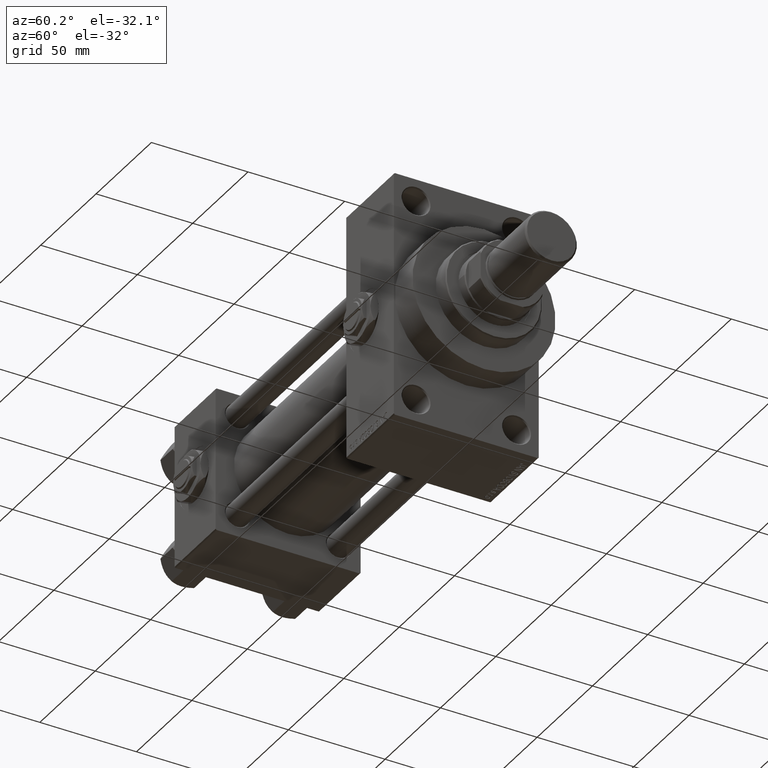
[diagram: clean part render]
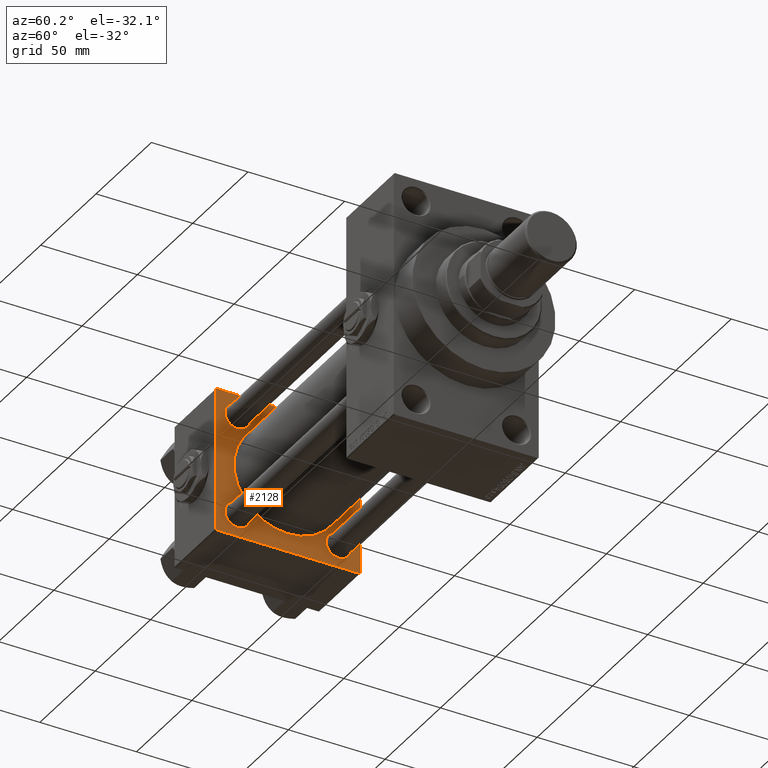
[diagram: same view with one face highlighted and labeled with its STEP entity id]
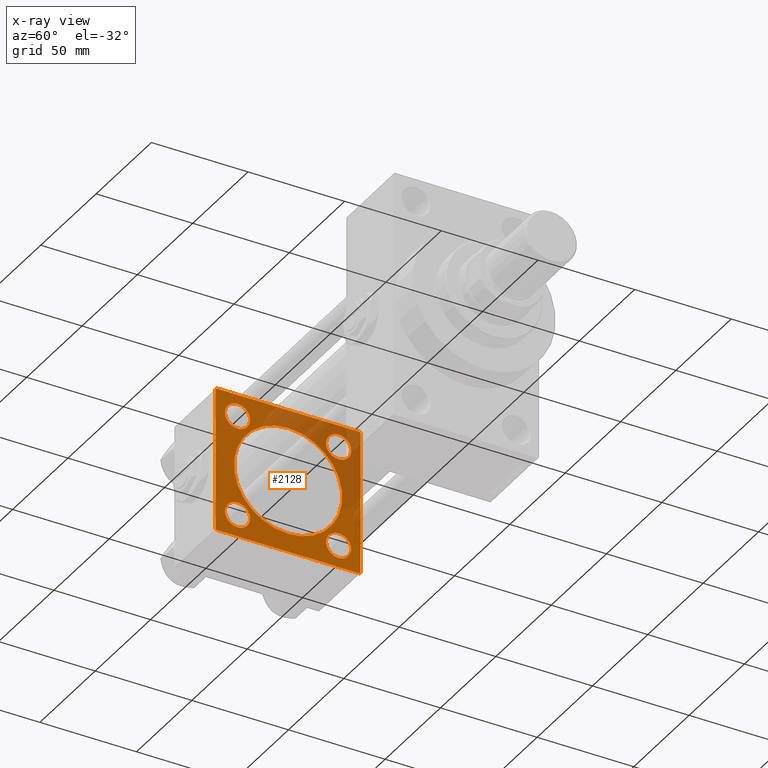
[diagram: x-ray of the same camera — body ghosted, the highlighted face saturated]
A machine part, auxiliary view. The second image highlights one B-rep face of the part: STEP entity #2128.
The next image is the same camera in x-ray: the body ghosted, the highlighted face saturated — about 31% of this face is hidden behind the body in this view.
In plain terms, the highlighted planar face has unit normal (-1, 0, 0).
Its self-contained STEP definition (entity closure, byte-faithful):
#186 = CIRCLE ( 'NONE', #32326, 6.500000000000008882 ) ;
#909 = ORIENTED_EDGE ( 'NONE', *, *, #9702, .T. ) ;
#956 = EDGE_CURVE ( 'NONE', #42505, #9009, #19380, .T. ) ;
#1224 = DIRECTION ( 'NONE',  ( 0.000000000000000000, 9.251858538542971581E-17, -1.000000000000000000 ) ) ;
#2128 = ADVANCED_FACE ( 'NONE', ( #20758, #28786, #17464, #40342, #5884, #21250 ), #36564, .F. ) ;
#2248 = DIRECTION ( 'NONE',  ( 0.000000000000000000, 0.000000000000000000, 1.000000000000000000 ) ) ;
#2397 = DIRECTION ( 'NONE',  ( -1.000000000000000000, 0.000000000000000000, -0.000000000000000000 ) ) ;
#2460 = VECTOR ( 'NONE', #48594, 1000.000000000000114 ) ;
#2522 = VERTEX_POINT ( 'NONE', #24948 ) ;
#2690 = CARTESIAN_POINT ( 'NONE',  ( 37.00000000000000711, 8.269258236473784371E-16, -28.00000000000000000 ) ) ;
#3348 = VERTEX_POINT ( 'NONE', #22642 ) ;
#4021 = VERTEX_POINT ( 'NONE', #41128 ) ;
#4926 = AXIS2_PLACEMENT_3D ( 'NONE', #45468, #37674, #2248 ) ;
#5040 = DIRECTION ( 'NONE',  ( 1.000000000000000000, -0.000000000000000000, 0.000000000000000000 ) ) ;
#5447 = EDGE_CURVE ( 'NONE', #39073, #9009, #7344, .T. ) ;
#5482 = DIRECTION ( 'NONE',  ( -1.000000000000000000, 0.000000000000000000, -0.000000000000000000 ) ) ;
#5884 = FACE_BOUND ( 'NONE', #18331, .T. ) ;
#6398 = EDGE_CURVE ( 'NONE', #24006, #2522, #6428, .T. ) ;
#6401 = EDGE_LOOP ( 'NONE', ( #38066, #29378 ) ) ;
#6428 = LINE ( 'NONE', #33352, #35399 ) ;
#6579 = CARTESIAN_POINT ( 'NONE',  ( 37.00000000000000000, 36.99999999999999289, 37.50000000000000000 ) ) ;
#6717 = AXIS2_PLACEMENT_3D ( 'NONE', #25144, #6730, #29153 ) ;
#6730 = DIRECTION ( 'NONE',  ( -1.000000000000000000, 0.000000000000000000, -0.000000000000000000 ) ) ;
#6774 = CARTESIAN_POINT ( 'NONE',  ( 37.00000000000000000, 37.49999999999999289, -37.50000000000000000 ) ) ;
#6794 = CARTESIAN_POINT ( 'NONE',  ( 37.00000000000000000, 37.49999999999999289, -36.99999999999998579 ) ) ;
#6795 = CARTESIAN_POINT ( 'NONE',  ( 37.00000000000000000, -37.50000000000000000, -37.00000000000003553 ) ) ;
#7344 = LINE ( 'NONE', #18435, #27355 ) ;
#7506 = CIRCLE ( 'NONE', #13955, 6.500000000000002665 ) ;
#8852 = EDGE_CURVE ( 'NONE', #45363, #10556, #30654, .T. ) ;
#8900 = CARTESIAN_POINT ( 'NONE',  ( 37.00000000000000000, 26.14999999999999858, 26.15000000000000213 ) ) ;
#9004 = VERTEX_POINT ( 'NONE', #2690 ) ;
#9009 = VERTEX_POINT ( 'NONE', #40450 ) ;
#9476 = VECTOR ( 'NONE', #22149, 1000.000000000000114 ) ;
#9702 = EDGE_CURVE ( 'NONE', #39073, #24006, #33272, .T. ) ;
#10556 = VERTEX_POINT ( 'NONE', #45778 ) ;
#11027 = DIRECTION ( 'NONE',  ( 0.000000000000000000, 0.7071067811865524577, -0.7071067811865426878 ) ) ;
#11363 = DIRECTION ( 'NONE',  ( -1.000000000000000000, 0.000000000000000000, -0.000000000000000000 ) ) ;
#11676 = EDGE_CURVE ( 'NONE', #28080, #45363, #36419, .T. ) ;
#11903 = VERTEX_POINT ( 'NONE', #15494 ) ;
#12072 = DIRECTION ( 'NONE',  ( -1.000000000000000000, 0.000000000000000000, -0.000000000000000000 ) ) ;
#12200 = AXIS2_PLACEMENT_3D ( 'NONE', #25534, #2397, #14454 ) ;
#12608 = CARTESIAN_POINT ( 'NONE',  ( 37.00000000000000000, -37.50000000000000711, 36.99999999999999289 ) ) ;
#13131 = EDGE_CURVE ( 'NONE', #38707, #3348, #18616, .T. ) ;
#13234 = ORIENTED_EDGE ( 'NONE', *, *, #956, .T. ) ;
#13516 = CARTESIAN_POINT ( 'NONE',  ( 37.00000000000000000, 37.49999999999999289, 37.00000000000000000 ) ) ;
#13850 = CIRCLE ( 'NONE', #34743, 6.500000000000002665 ) ;
#13955 = AXIS2_PLACEMENT_3D ( 'NONE', #49280, #12072, #38723 ) ;
#14134 = EDGE_CURVE ( 'NONE', #30828, #45221, #13850, .T. ) ;
#14454 = DIRECTION ( 'NONE',  ( 0.000000000000000000, 0.000000000000000000, 1.000000000000000000 ) ) ;
#14677 = CARTESIAN_POINT ( 'NONE',  ( 37.00000000000000711, -2.602085213965210642E-15, 0.000000000000000000 ) ) ;
#14937 = DIRECTION ( 'NONE',  ( 0.000000000000000000, 0.000000000000000000, 1.000000000000000000 ) ) ;
#15472 = VERTEX_POINT ( 'NONE', #17436 ) ;
#15494 = CARTESIAN_POINT ( 'NONE',  ( 37.00000000000000000, -26.14999999999999147, -32.65000000000001279 ) ) ;
#15731 = CARTESIAN_POINT ( 'NONE',  ( 37.00000000000000000, 26.14999999999999858, 19.64999999999999858 ) ) ;
#16090 = EDGE_LOOP ( 'NONE', ( #37128, #44564 ) ) ;
#16620 = DIRECTION ( 'NONE',  ( 0.000000000000000000, 0.000000000000000000, 1.000000000000000000 ) ) ;
#16878 = DIRECTION ( 'NONE',  ( -0.000000000000000000, -0.7071067811865474617, -0.7071067811865474617 ) ) ;
#16999 = EDGE_CURVE ( 'NONE', #3348, #38707, #7506, .T. ) ;
#17129 = LINE ( 'NONE', #12608, #45708 ) ;
#17150 = EDGE_CURVE ( 'NONE', #4021, #15472, #28440, .T. ) ;
#17217 = AXIS2_PLACEMENT_3D ( 'NONE', #39496, #5040, #16620 ) ;
#17436 = CARTESIAN_POINT ( 'NONE',  ( 37.00000000000000000, -26.14999999999999147, 32.65000000000001990 ) ) ;
#17464 = FACE_BOUND ( 'NONE', #6401, .T. ) ;
#17740 = ORIENTED_EDGE ( 'NONE', *, *, #42053, .F. ) ;
#18331 = EDGE_LOOP ( 'NONE', ( #29940, #17740 ) ) ;
#18435 = CARTESIAN_POINT ( 'NONE',  ( 37.00000000000000000, 37.49999999999999289, 37.50000000000000000 ) ) ;
#18616 = CIRCLE ( 'NONE', #12200, 6.500000000000002665 ) ;
#19051 = EDGE_CURVE ( 'NONE', #45221, #30828, #21304, .T. ) ;
#19207 = AXIS2_PLACEMENT_3D ( 'NONE', #14677, #30020, #29781 ) ;
#19380 = LINE ( 'NONE', #6794, #9476 ) ;
#20694 = ORIENTED_EDGE ( 'NONE', *, *, #5447, .F. ) ;
#20707 = CARTESIAN_POINT ( 'NONE',  ( 37.00000000000000000, 26.14999999999999858, 32.65000000000001279 ) ) ;
#20758 = FACE_BOUND ( 'NONE', #16090, .T. ) ;
#20853 = DIRECTION ( 'NONE',  ( 0.000000000000000000, 0.000000000000000000, 1.000000000000000000 ) ) ;
#21250 = FACE_OUTER_BOUND ( 'NONE', #33754, .T. ) ;
#21304 = CIRCLE ( 'NONE', #26081, 6.500000000000002665 ) ;
#21823 = VECTOR ( 'NONE', #1224, 1000.000000000000000 ) ;
#21903 = ORIENTED_EDGE ( 'NONE', *, *, #27725, .T. ) ;
#22149 = DIRECTION ( 'NONE',  ( -0.000000000000000000, 0.7071067811865474617, 0.7071067811865474617 ) ) ;
#22540 = EDGE_LOOP ( 'NONE', ( #43115, #32528 ) ) ;
#22642 = CARTESIAN_POINT ( 'NONE',  ( 37.00000000000000000, 26.14999999999999858, -32.65000000000000568 ) ) ;
#22808 = EDGE_CURVE ( 'NONE', #39930, #9004, #43316, .T. ) ;
#22988 = CARTESIAN_POINT ( 'NONE',  ( 37.00000000000000000, -26.14999999999999147, -26.15000000000000924 ) ) ;
#23385 = CIRCLE ( 'NONE', #4926, 6.500000000000002665 ) ;
#24006 = VERTEX_POINT ( 'NONE', #6579 ) ;
#24267 = DIRECTION ( 'NONE',  ( -1.000000000000000000, 0.000000000000000000, -0.000000000000000000 ) ) ;
#24948 = CARTESIAN_POINT ( 'NONE',  ( 37.00000000000000000, -37.00000000000000711, 37.49999999999999289 ) ) ;
#25144 = CARTESIAN_POINT ( 'NONE',  ( 37.00000000000000000, -26.14999999999999147, 26.15000000000000924 ) ) ;
#25534 = CARTESIAN_POINT ( 'NONE',  ( 37.00000000000000000, 26.14999999999999858, -26.15000000000000213 ) ) ;
#26081 = AXIS2_PLACEMENT_3D ( 'NONE', #8900, #24267, #27005 ) ;
#26291 = DIRECTION ( 'NONE',  ( -1.000000000000000000, 0.000000000000000000, -0.000000000000000000 ) ) ;
#26462 = DIRECTION ( 'NONE',  ( -0.000000000000000000, 0.000000000000000000, 1.000000000000000000 ) ) ;
#26812 = ORIENTED_EDGE ( 'NONE', *, *, #13131, .T. ) ;
#26880 = CARTESIAN_POINT ( 'NONE',  ( 37.00000000000000000, -37.00000000000002132, -37.50000000000000711 ) ) ;
#27005 = DIRECTION ( 'NONE',  ( 0.000000000000000000, 0.000000000000000000, 1.000000000000000000 ) ) ;
#27355 = VECTOR ( 'NONE', #38277, 1000.000000000000000 ) ;
#27725 = EDGE_CURVE ( 'NONE', #2522, #28080, #17129, .T. ) ;
#27887 = ORIENTED_EDGE ( 'NONE', *, *, #6398, .T. ) ;
#28080 = VERTEX_POINT ( 'NONE', #43227 ) ;
#28389 = CARTESIAN_POINT ( 'NONE',  ( 37.00000000000000000, -26.14999999999999147, 26.15000000000000924 ) ) ;
#28440 = CIRCLE ( 'NONE', #6717, 6.500000000000008882 ) ;
#28624 = EDGE_LOOP ( 'NONE', ( #40388, #26812 ) ) ;
#28786 = FACE_BOUND ( 'NONE', #28624, .T. ) ;
#29153 = DIRECTION ( 'NONE',  ( 0.000000000000000000, 0.000000000000000000, 1.000000000000000000 ) ) ;
#29378 = ORIENTED_EDGE ( 'NONE', *, *, #33933, .T. ) ;
#29641 = VERTEX_POINT ( 'NONE', #42295 ) ;
#29781 = DIRECTION ( 'NONE',  ( 0.000000000000000000, 0.000000000000000000, 1.000000000000000000 ) ) ;
#29940 = ORIENTED_EDGE ( 'NONE', *, *, #22808, .F. ) ;
#30020 = DIRECTION ( 'NONE',  ( 1.000000000000000000, -0.000000000000000000, 0.000000000000000000 ) ) ;
#30039 = EDGE_CURVE ( 'NONE', #42505, #10556, #41232, .T. ) ;
#30654 = LINE ( 'NONE', #26880, #46748 ) ;
#30680 = AXIS2_PLACEMENT_3D ( 'NONE', #22988, #37814, #14937 ) ;
#30828 = VERTEX_POINT ( 'NONE', #15731 ) ;
#31113 = EDGE_CURVE ( 'NONE', #11903, #29641, #23385, .T. ) ;
#32326 = AXIS2_PLACEMENT_3D ( 'NONE', #28389, #5482, #20853 ) ;
#32528 = ORIENTED_EDGE ( 'NONE', *, *, #19051, .T. ) ;
#32938 = EDGE_CURVE ( 'NONE', #29641, #11903, #35520, .T. ) ;
#33272 = LINE ( 'NONE', #44356, #2460 ) ;
#33352 = CARTESIAN_POINT ( 'NONE',  ( 37.00000000000000000, 37.49999999999999289, 37.50000000000000000 ) ) ;
#33754 = EDGE_LOOP ( 'NONE', ( #45934, #13234, #20694, #909, #27887, #21903, #34693, #40516 ) ) ;
#33933 = EDGE_CURVE ( 'NONE', #15472, #4021, #186, .T. ) ;
#34013 = CARTESIAN_POINT ( 'NONE',  ( 37.00000000000000000, 0.000000000000000000, 0.000000000000000000 ) ) ;
#34693 = ORIENTED_EDGE ( 'NONE', *, *, #11676, .T. ) ;
#34743 = AXIS2_PLACEMENT_3D ( 'NONE', #45400, #26291, #39370 ) ;
#35399 = VECTOR ( 'NONE', #48916, 1000.000000000000000 ) ;
#35520 = CIRCLE ( 'NONE', #30680, 6.500000000000002665 ) ;
#36419 = LINE ( 'NONE', #47239, #21823 ) ;
#36564 = PLANE ( 'NONE',  #40036 ) ;
#37128 = ORIENTED_EDGE ( 'NONE', *, *, #31113, .T. ) ;
#37674 = DIRECTION ( 'NONE',  ( -1.000000000000000000, 0.000000000000000000, -0.000000000000000000 ) ) ;
#37814 = DIRECTION ( 'NONE',  ( -1.000000000000000000, 0.000000000000000000, -0.000000000000000000 ) ) ;
#38066 = ORIENTED_EDGE ( 'NONE', *, *, #17150, .T. ) ;
#38277 = DIRECTION ( 'NONE',  ( 0.000000000000000000, 0.000000000000000000, -1.000000000000000000 ) ) ;
#38548 = CARTESIAN_POINT ( 'NONE',  ( 37.00000000000000000, 36.99999999999997868, -37.50000000000000000 ) ) ;
#38707 = VERTEX_POINT ( 'NONE', #43393 ) ;
#38723 = DIRECTION ( 'NONE',  ( 0.000000000000000000, 0.000000000000000000, 1.000000000000000000 ) ) ;
#39073 = VERTEX_POINT ( 'NONE', #13516 ) ;
#39370 = DIRECTION ( 'NONE',  ( 0.000000000000000000, 0.000000000000000000, 1.000000000000000000 ) ) ;
#39496 = CARTESIAN_POINT ( 'NONE',  ( 37.00000000000000711, -2.602085213965210642E-15, 0.000000000000000000 ) ) ;
#39930 = VERTEX_POINT ( 'NONE', #44448 ) ;
#40036 = AXIS2_PLACEMENT_3D ( 'NONE', #34013, #11363, #26462 ) ;
#40342 = FACE_BOUND ( 'NONE', #22540, .T. ) ;
#40388 = ORIENTED_EDGE ( 'NONE', *, *, #16999, .T. ) ;
#40450 = CARTESIAN_POINT ( 'NONE',  ( 37.00000000000000000, 37.49999999999999289, -36.99999999999998579 ) ) ;
#40516 = ORIENTED_EDGE ( 'NONE', *, *, #8852, .T. ) ;
#41128 = CARTESIAN_POINT ( 'NONE',  ( 37.00000000000000000, -26.14999999999999147, 19.65000000000000213 ) ) ;
#41232 = LINE ( 'NONE', #6774, #44238 ) ;
#42053 = EDGE_CURVE ( 'NONE', #9004, #39930, #43693, .T. ) ;
#42295 = CARTESIAN_POINT ( 'NONE',  ( 37.00000000000000000, -26.14999999999999147, -19.65000000000000924 ) ) ;
#42505 = VERTEX_POINT ( 'NONE', #38548 ) ;
#43115 = ORIENTED_EDGE ( 'NONE', *, *, #14134, .T. ) ;
#43227 = CARTESIAN_POINT ( 'NONE',  ( 37.00000000000000000, -37.50000000000000711, 36.99999999999999289 ) ) ;
#43316 = CIRCLE ( 'NONE', #19207, 28.00000000000000000 ) ;
#43393 = CARTESIAN_POINT ( 'NONE',  ( 37.00000000000000000, 26.14999999999999858, -19.65000000000000213 ) ) ;
#43693 = CIRCLE ( 'NONE', #17217, 28.00000000000000000 ) ;
#44238 = VECTOR ( 'NONE', #45255, 1000.000000000000000 ) ;
#44356 = CARTESIAN_POINT ( 'NONE',  ( 37.00000000000000000, 36.99999999999999289, 37.50000000000000000 ) ) ;
#44448 = CARTESIAN_POINT ( 'NONE',  ( 37.00000000000000711, -2.602085213965210642E-15, 28.00000000000000000 ) ) ;
#44564 = ORIENTED_EDGE ( 'NONE', *, *, #32938, .T. ) ;
#45221 = VERTEX_POINT ( 'NONE', #20707 ) ;
#45255 = DIRECTION ( 'NONE',  ( 0.000000000000000000, -1.000000000000000000, -9.251858538542972814E-17 ) ) ;
#45363 = VERTEX_POINT ( 'NONE', #6795 ) ;
#45400 = CARTESIAN_POINT ( 'NONE',  ( 37.00000000000000000, 26.14999999999999858, 26.15000000000000213 ) ) ;
#45468 = CARTESIAN_POINT ( 'NONE',  ( 37.00000000000000000, -26.14999999999999147, -26.15000000000000924 ) ) ;
#45708 = VECTOR ( 'NONE', #16878, 1000.000000000000114 ) ;
#45778 = CARTESIAN_POINT ( 'NONE',  ( 37.00000000000000000, -37.00000000000002132, -37.50000000000000711 ) ) ;
#45934 = ORIENTED_EDGE ( 'NONE', *, *, #30039, .F. ) ;
#46748 = VECTOR ( 'NONE', #11027, 1000.000000000000000 ) ;
#47239 = CARTESIAN_POINT ( 'NONE',  ( 37.00000000000000000, -37.50000000000000711, 37.49999999999999289 ) ) ;
#48594 = DIRECTION ( 'NONE',  ( 0.000000000000000000, -0.7071067811865474617, 0.7071067811865474617 ) ) ;
#48916 = DIRECTION ( 'NONE',  ( 0.000000000000000000, -1.000000000000000000, -9.251858538542971581E-17 ) ) ;
#49280 = CARTESIAN_POINT ( 'NONE',  ( 37.00000000000000000, 26.14999999999999858, -26.15000000000000213 ) ) ;